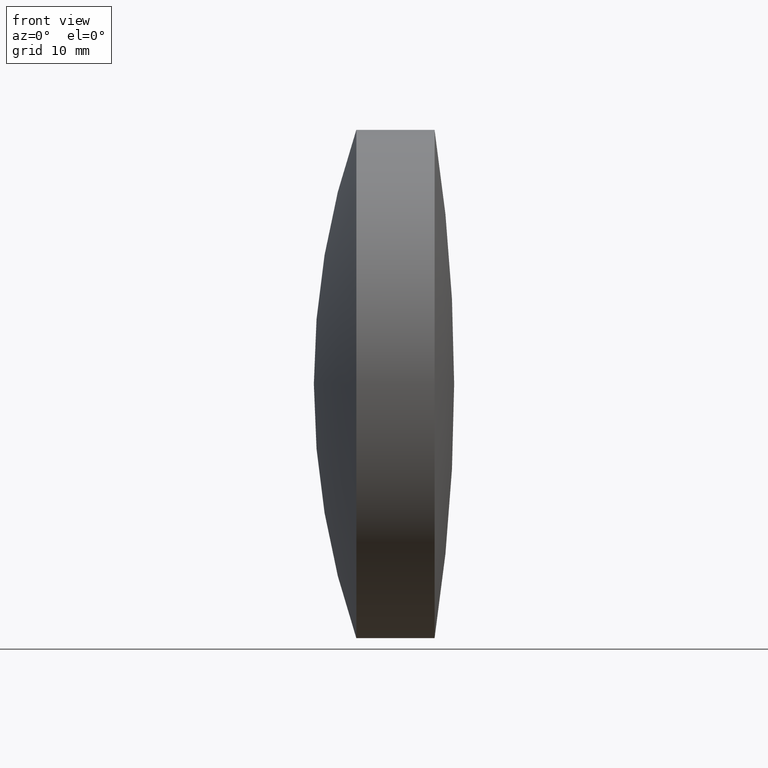
[diagram: clean part render]
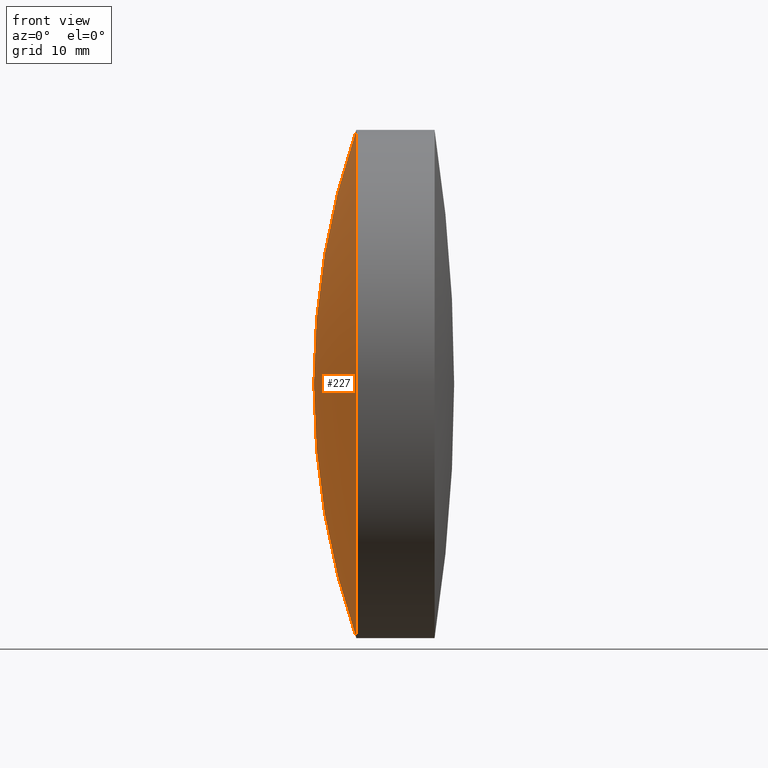
[diagram: same view with one face highlighted and labeled with its STEP entity id]
A machine part, front view. The second image highlights one B-rep face of the part: STEP entity #227.
In plain terms, the highlighted spherical surface has radius 96.87 mm.
Its self-contained STEP definition (entity closure, byte-faithful):
#17 = CARTESIAN_POINT ( 'NONE',  ( 314.9446393134603600, 0.0000000000000000000, 0.0000000000000000000 ) ) ;
#32 = DIRECTION ( 'NONE',  ( -0.0000000000000000000, 1.000000000000000000, 1.224646799147353200E-016 ) ) ;
#55 = AXIS2_PLACEMENT_3D ( 'NONE', #306, #132, #111 ) ;
#66 = AXIS2_PLACEMENT_3D ( 'NONE', #17, #205, #125 ) ;
#73 = ORIENTED_EDGE ( 'NONE', *, *, #247, .T. ) ;
#92 = VERTEX_POINT ( 'NONE', #160 ) ;
#98 = DIRECTION ( 'NONE',  ( 0.0000000000000000000, 0.0000000000000000000, 1.000000000000000000 ) ) ;
#111 = DIRECTION ( 'NONE',  ( 0.0000000000000000000, 0.0000000000000000000, -1.000000000000000000 ) ) ;
#125 = DIRECTION ( 'NONE',  ( 0.0000000000000000000, 0.0000000000000000000, 1.000000000000000000 ) ) ;
#132 = DIRECTION ( 'NONE',  ( 0.0000000000000000000, -1.000000000000000000, 0.0000000000000000000 ) ) ;
#151 = CARTESIAN_POINT ( 'NONE',  ( 309.6800261637979500, 0.0000000000000000000, -1.169225339335557400E-014 ) ) ;
#160 = CARTESIAN_POINT ( 'NONE',  ( 314.9446393134603600, 3.857637417314149300E-015, -31.49999999999991100 ) ) ;
#168 = EDGE_CURVE ( 'NONE', #249, #175, #260, .T. ) ;
#175 = VERTEX_POINT ( 'NONE', #151 ) ;
#179 = EDGE_CURVE ( 'NONE', #92, #175, #257, .T. ) ;
#181 = ORIENTED_EDGE ( 'NONE', *, *, #179, .F. ) ;
#205 = DIRECTION ( 'NONE',  ( -1.000000000000000000, -0.0000000000000000000, -0.0000000000000000000 ) ) ;
#214 = ORIENTED_EDGE ( 'NONE', *, *, #168, .T. ) ;
#216 = CIRCLE ( 'NONE', #66, 31.49999999999990400 ) ;
#227 = ADVANCED_FACE ( 'NONE', ( #256 ), #234, .T. ) ;
#234 = SPHERICAL_SURFACE ( 'NONE', #318, 96.86999999999999000 ) ;
#239 = DIRECTION ( 'NONE',  ( 0.0000000000000000000, -1.224646799147353200E-016, 1.000000000000000000 ) ) ;
#247 = EDGE_CURVE ( 'NONE', #92, #249, #216, .T. ) ;
#249 = VERTEX_POINT ( 'NONE', #309 ) ;
#256 = FACE_OUTER_BOUND ( 'NONE', #287, .T. ) ;
#257 = CIRCLE ( 'NONE', #342, 96.86999999999999000 ) ;
#260 = CIRCLE ( 'NONE', #55, 96.86999999999999000 ) ;
#265 = CARTESIAN_POINT ( 'NONE',  ( 406.5500261637979500, 0.0000000000000000000, -1.762383016502577900E-014 ) ) ;
#285 = CARTESIAN_POINT ( 'NONE',  ( 406.5500261637979500, 0.0000000000000000000, -1.762383016502577900E-014 ) ) ;
#287 = EDGE_LOOP ( 'NONE', ( #181, #73, #214 ) ) ;
#306 = CARTESIAN_POINT ( 'NONE',  ( 406.5500261637979500, 0.0000000000000000000, -1.762383016502577900E-014 ) ) ;
#309 = CARTESIAN_POINT ( 'NONE',  ( 314.9446393134603600, 0.0000000000000000000, 31.49999999999989000 ) ) ;
#318 = AXIS2_PLACEMENT_3D ( 'NONE', #285, #332, #98 ) ;
#332 = DIRECTION ( 'NONE',  ( 0.0000000000000000000, 1.000000000000000000, 0.0000000000000000000 ) ) ;
#342 = AXIS2_PLACEMENT_3D ( 'NONE', #265, #32, #239 ) ;